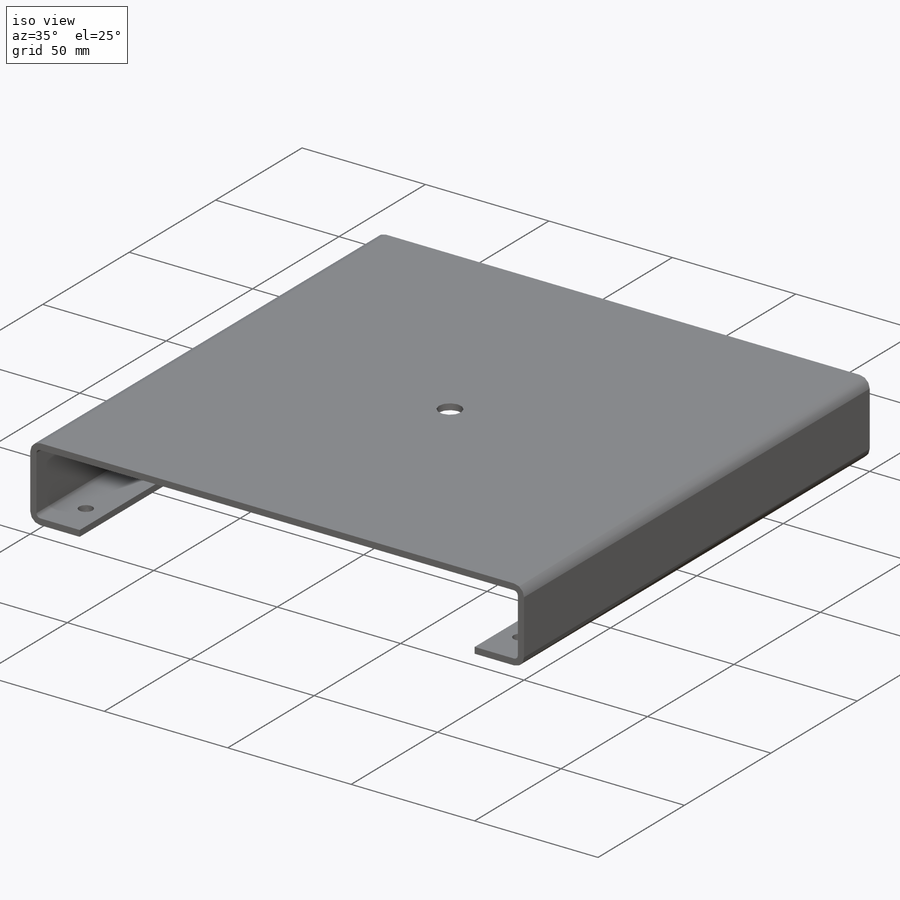
[diagram: iso view]
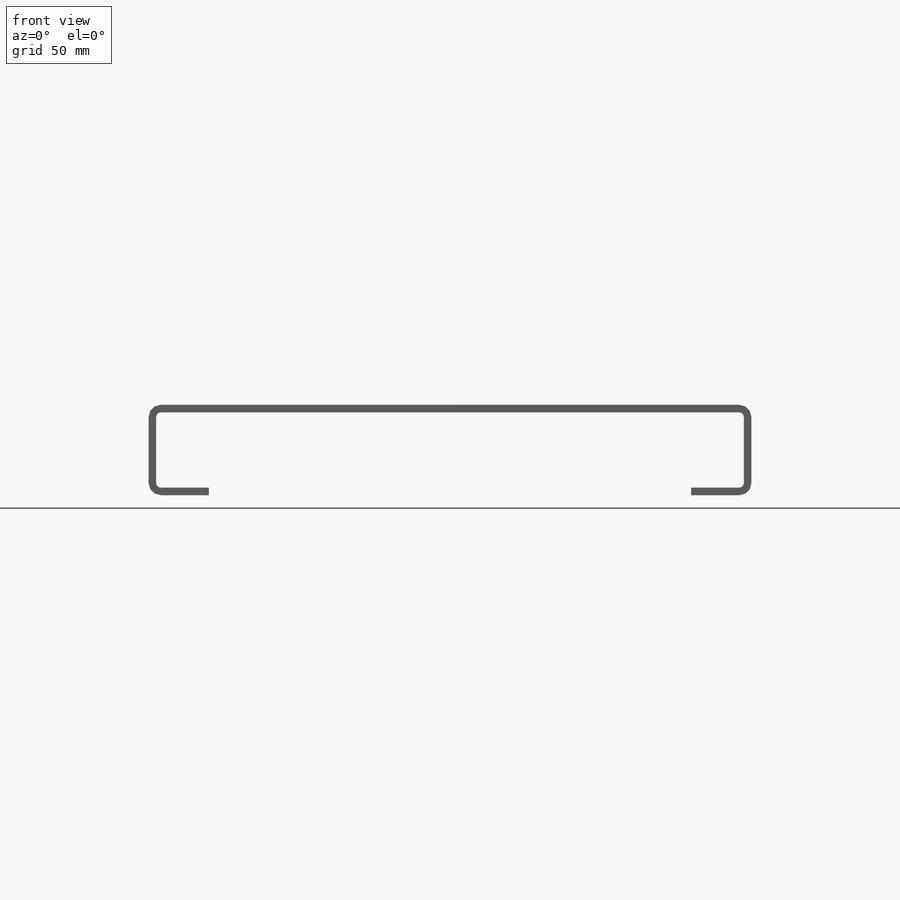
[diagram: front view]
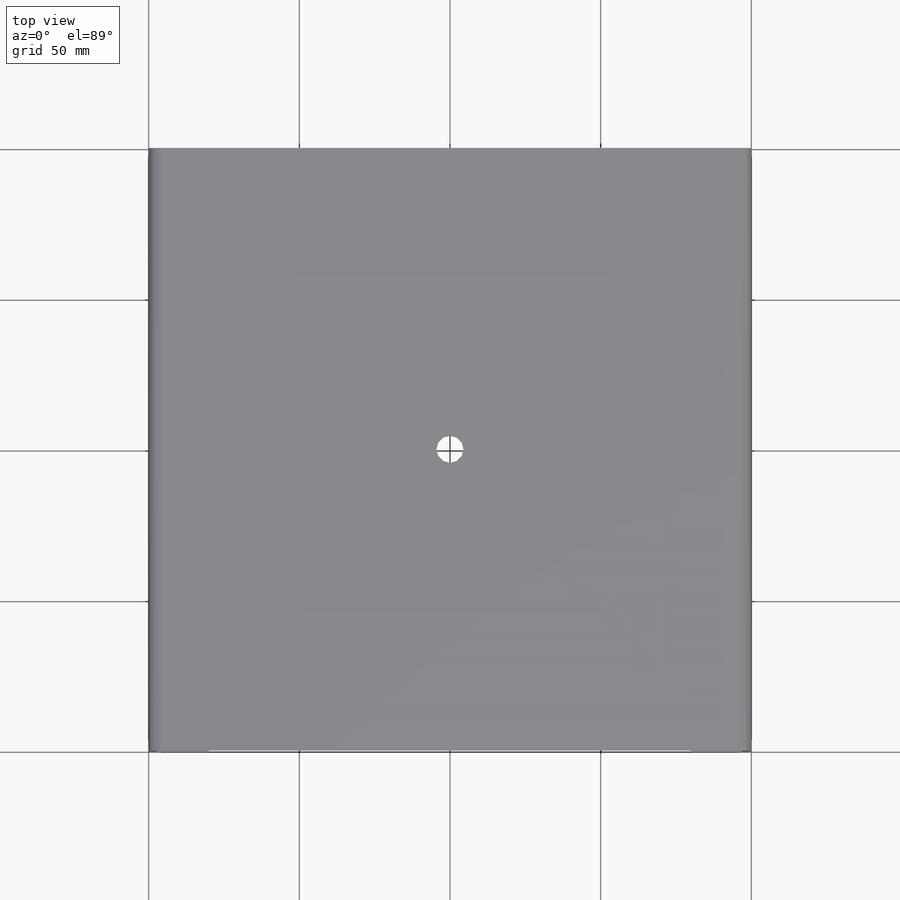
[diagram: top view]
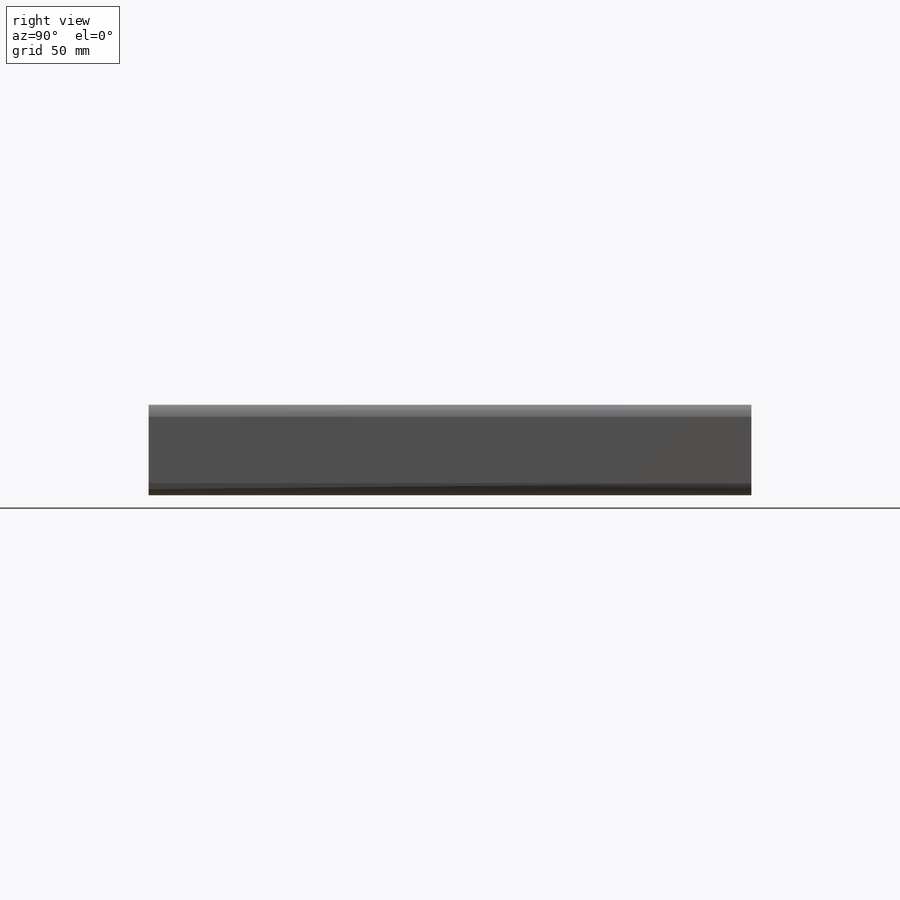
[diagram: right view]
SOLIDWORKS PART (.sldprt)
format: sldprt  version: not decoded by parser v0  size: 333,824 bytes
history: native  units: mm
features: sketch x7, plane x3, cut_extrude x3, material x1, extrude x1, shell x1, sheet_metal_op x1 + 1 further entry (+11 scaffold rows collapsed)
feature tree (29):
  scaffold x11  (default folders/planes/origin — collapsed)
  material  "Matériau <non spécifié>"
  plane  "Plan de face"
  plane  "Plan de dessus"
  plane  "Plan de droite"
  sketch  "Esquisse1"  dims[D1=200.0mm]
  extrude  "Extrusion1"  Depth=30mm
  shell  "Coque5"  Thickness=2.5mm
  sketch  "Esquisse2"
  cut_extrude  "Enlèv. mat.-Extru.1"  Depth=10mm
  sketch  "Esquisse3"  dims[D1=~12.209196mm]
  cut_extrude  "Enlèv. mat.-Extru.2"  Depth=4mm
  sketch  "Esquisse4"  dims[D1=~4.15329mm]
  cut_extrude  "Enlèv. mat.-Extru.3"  Depth=4mm
  sheet_metal_op  "Tôlerie 1"  Epaisseur=2.5mm
  sketch  "Esquisse-Angle1"  dims[c1.Pli dans angle1=0.0 c1.D1=0.0mm c1.D4=90.0deg c1.D5=4.0 c1.D8=1.25mm c1.D9=1.25mm c1.Pli dans angle2=0.0 c2.D1=0.0mm c2.D4=90.0deg c2.D5=3.0 c2.D8=1.25mm c2.D9=1.25mm c2.Pli dans angle4=0.0 c3.D1=0.0mm c3.D4=90.0deg c3.D5=2.0 c3.D8=1.25mm c3.D9=1.25mm c4.D1=0.0mm]
  sketch  "Esquisse-Plate1"  dims[D1=0.0mm]
  "Etat déplié1"
  sketch  "Lignes de pliage1"
decode coverage: 11 of 13 modeling features carry decoded parameters; 1 rows unclassified (native names shown)
note: ~ marks probable driven/reference dimensions
note: suppression state not decoded; provenance and decode notes live in map.json
